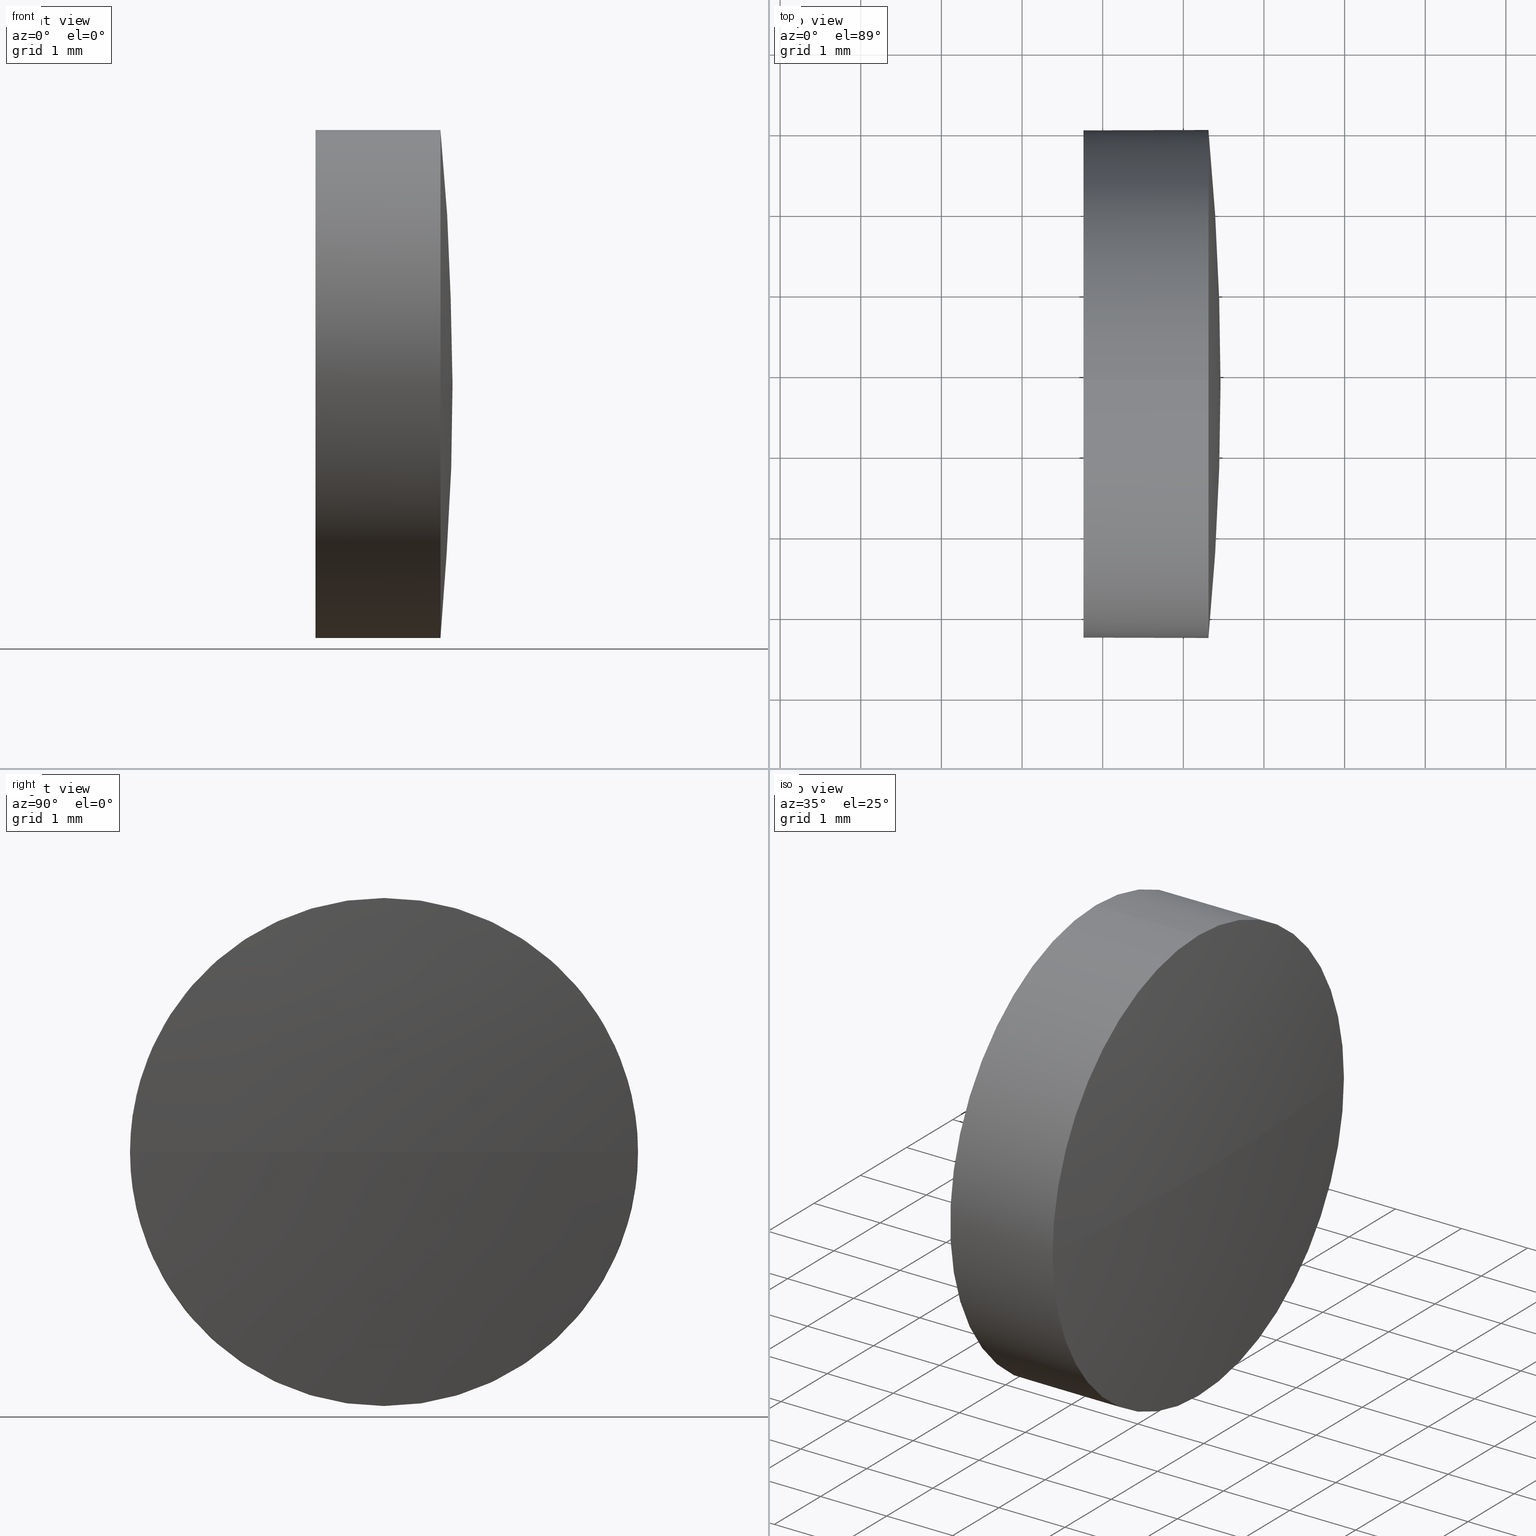
[diagram: canonical four-view strip — front | top / right | iso, engineering-drawing reading convention]
A machine part, canonical four-view strip (front | top / right | iso — engineering-drawing reading convention). The complete STEP part file that produces these views, byte-faithful:
ISO-10303-21;
HEADER;
FILE_DESCRIPTION (( 'STEP AP214' ),
    '1' );
FILE_NAME ('100013.STEP',
    '2019-04-19T06:52:43',
    ( '' ),
    ( '' ),
    'SwSTEP 2.0',
    'SolidWorks 2016',
    '' );
FILE_SCHEMA (( 'AUTOMOTIVE_DESIGN' ));
ENDSEC;

DATA;
#1 = ADVANCED_FACE ( 'NONE', ( #99 ), #119, .T. ) ;
#2 = MECHANICAL_DESIGN_GEOMETRIC_PRESENTATION_REPRESENTATION (  '', ( #44 ), #21 ) ;
#3 = FILL_AREA_STYLE ('',( #17 ) ) ;
#4 = ORIENTED_EDGE ( 'NONE', *, *, #14, .T. ) ;
#5 =( LENGTH_UNIT ( ) NAMED_UNIT ( * ) SI_UNIT ( .MILLI., .METRE. ) );
#6 = DIRECTION ( 'NONE',  ( -1.000000000000000000, -0.0000000000000000000, -0.0000000000000000000 ) ) ;
#7 = DIRECTION ( 'NONE',  ( -1.000000000000000000, -0.0000000000000000000, -0.0000000000000000000 ) ) ;
#8 = CARTESIAN_POINT ( 'NONE',  ( 0.0000000000000000000, 0.0000000000000000000, 0.0000000000000000000 ) ) ;
#9 = MANIFOLD_SOLID_BREP ( '��ת1', #122 ) ;
#10 = DIRECTION ( 'NONE',  ( -1.000000000000000000, -0.0000000000000000000, -0.0000000000000000000 ) ) ;
#11 = EDGE_CURVE ( 'NONE', #18, #165, #87, .T. ) ;
#12 = ORIENTED_EDGE ( 'NONE', *, *, #137, .F. ) ;
#13 = SURFACE_STYLE_FILL_AREA ( #3 ) ;
#14 = EDGE_CURVE ( 'NONE', #114, #170, #78, .T. ) ;
#15 = EDGE_LOOP ( 'NONE', ( #143, #108, #184, #157, #67 ) ) ;
#16 = CARTESIAN_POINT ( 'NONE',  ( 1118.311526673283900, 408.8643062217863600, -3.149999999999986100 ) ) ;
#17 = FILL_AREA_STYLE_COLOUR ( '', #58 ) ;
#18 = VERTEX_POINT ( 'NONE', #19 ) ;
#19 = CARTESIAN_POINT ( 'NONE',  ( 1116.761526673283900, 408.8643062217863600, 3.149999999999986100 ) ) ;
#20 = DIRECTION ( 'NONE',  ( 0.0000000000000000000, 1.000000000000000000, 0.0000000000000000000 ) ) ;
#21 =( GEOMETRIC_REPRESENTATION_CONTEXT ( 3 ) GLOBAL_UNCERTAINTY_ASSIGNED_CONTEXT ( ( #163 ) ) GLOBAL_UNIT_ASSIGNED_CONTEXT ( ( #61, #159, #91 ) ) REPRESENTATION_CONTEXT ( 'NONE', 'WORKASPACE' ) );
#22 = CARTESIAN_POINT ( 'NONE',  ( 1085.311526673284300, 408.8643062217854500, 0.0000000000000000000 ) ) ;
#23 = DIRECTION ( 'NONE',  ( 0.0000000000000000000, 0.0000000000000000000, 1.000000000000000000 ) ) ;
#24 = FACE_OUTER_BOUND ( 'NONE', #45, .T. ) ;
#25 = APPLICATION_PROTOCOL_DEFINITION ( 'draft international standard', 'automotive_design', 1998, #104 ) ;
#26 = VERTEX_POINT ( 'NONE', #16 ) ;
#27 = VECTOR ( 'NONE', #7, 1000.000000000000000 ) ;
#28 = EDGE_CURVE ( 'NONE', #96, #18, #72, .T. ) ;
#29 = ADVANCED_FACE ( 'NONE', ( #148 ), #173, .T. ) ;
#30 = CIRCLE ( 'NONE', #81, 3.149999999999986100 ) ;
#31 = EDGE_CURVE ( 'NONE', #96, #170, #152, .T. ) ;
#32 = SURFACE_STYLE_FILL_AREA ( #176 ) ;
#33 = ORIENTED_EDGE ( 'NONE', *, *, #64, .F. ) ;
#34 = DIRECTION ( 'NONE',  ( -0.0000000000000000000, 0.0000000000000000000, 1.000000000000000000 ) ) ;
#35 =( NAMED_UNIT ( * ) PLANE_ANGLE_UNIT ( ) SI_UNIT ( $, .RADIAN. ) );
#36 =( GEOMETRIC_REPRESENTATION_CONTEXT ( 3 ) GLOBAL_UNCERTAINTY_ASSIGNED_CONTEXT ( ( #141 ) ) GLOBAL_UNIT_ASSIGNED_CONTEXT ( ( #5, #35, #49 ) ) REPRESENTATION_CONTEXT ( 'NONE', 'WORKASPACE' ) );
#37 = VECTOR ( 'NONE', #6, 1000.000000000000000 ) ;
#38 = DIRECTION ( 'NONE',  ( 0.0000000000000000000, 1.224646799147353200E-016, -1.000000000000000000 ) ) ;
#39 = ORIENTED_EDGE ( 'NONE', *, *, #174, .T. ) ;
#40 = DIRECTION ( 'NONE',  ( 1.000000000000000000, 0.0000000000000000000, 0.0000000000000000000 ) ) ;
#41 = PRODUCT_DEFINITION_FORMATION_WITH_SPECIFIED_SOURCE ( '�κ�', '', #160, .NOT_KNOWN. ) ;
#42 = DIRECTION ( 'NONE',  ( 0.0000000000000000000, 0.0000000000000000000, 1.000000000000000000 ) ) ;
#43 = SURFACE_SIDE_STYLE ('',( #32 ) ) ;
#44 = STYLED_ITEM ( 'NONE', ( #107 ), #132 ) ;
#45 = EDGE_LOOP ( 'NONE', ( #73, #39, #48, #146, #33 ) ) ;
#46 = ADVANCED_FACE ( 'NONE', ( #76 ), #144, .F. ) ;
#47 = AXIS2_PLACEMENT_3D ( 'NONE', #65, #34, #109 ) ;
#48 = ORIENTED_EDGE ( 'NONE', *, *, #186, .T. ) ;
#49 =( NAMED_UNIT ( * ) SI_UNIT ( $, .STERADIAN. ) SOLID_ANGLE_UNIT ( ) );
#50 = LINE ( 'NONE', #101, #27 ) ;
#51 = DIRECTION ( 'NONE',  ( 0.0000000000000000000, 0.0000000000000000000, 1.000000000000000000 ) ) ;
#52 = ORIENTED_EDGE ( 'NONE', *, *, #31, .F. ) ;
#53 = DIRECTION ( 'NONE',  ( 0.0000000000000000000, 0.0000000000000000000, 1.000000000000000000 ) ) ;
#54 = FILL_AREA_STYLE_COLOUR ( '', #70 ) ;
#55 = DIRECTION ( 'NONE',  ( -1.000000000000000000, -0.0000000000000000000, -0.0000000000000000000 ) ) ;
#56 = CARTESIAN_POINT ( 'NONE',  ( 1085.311526673284300, 408.8643062217854500, 0.0000000000000000000 ) ) ;
#57 = DIRECTION ( 'NONE',  ( -1.000000000000000000, -0.0000000000000000000, -0.0000000000000000000 ) ) ;
#58 = COLOUR_RGB ( '',1.000000000000000000, 1.000000000000000000, 1.000000000000000000 ) ;
#59 = AXIS2_PLACEMENT_3D ( 'NONE', #88, #86, #125 ) ;
#60 =( LENGTH_UNIT ( ) NAMED_UNIT ( * ) SI_UNIT ( .MILLI., .METRE. ) );
#61 =( LENGTH_UNIT ( ) NAMED_UNIT ( * ) SI_UNIT ( .MILLI., .METRE. ) );
#62 = CIRCLE ( 'NONE', #153, 3.149999999999986100 ) ;
#63 = ORIENTED_EDGE ( 'NONE', *, *, #14, .F. ) ;
#64 = EDGE_CURVE ( 'NONE', #165, #18, #120, .T. ) ;
#65 = CARTESIAN_POINT ( 'NONE',  ( 1085.311526673284300, 408.8643062217854500, 0.0000000000000000000 ) ) ;
#66 = DIRECTION ( 'NONE',  ( -1.000000000000000000, -0.0000000000000000000, -0.0000000000000000000 ) ) ;
#67 = ORIENTED_EDGE ( 'NONE', *, *, #31, .T. ) ;
#68 = AXIS2_PLACEMENT_3D ( 'NONE', #138, #111, #139 ) ;
#69 = CARTESIAN_POINT ( 'NONE',  ( 1118.461526673284000, 408.8643062217854500, 0.0000000000000000000 ) ) ;
#70 = COLOUR_RGB ( '',1.000000000000000000, 1.000000000000000000, 1.000000000000000000 ) ;
#71 = CARTESIAN_POINT ( 'NONE',  ( 1118.311526673283900, 408.8643062217863600, 0.0000000000000000000 ) ) ;
#72 = LINE ( 'NONE', #168, #37 ) ;
#73 = ORIENTED_EDGE ( 'NONE', *, *, #161, .F. ) ;
#74 = AXIS2_PLACEMENT_3D ( 'NONE', #183, #10, #85 ) ;
#75 = DIRECTION ( 'NONE',  ( 0.0000000000000000000, 0.0000000000000000000, 1.000000000000000000 ) ) ;
#76 = FACE_OUTER_BOUND ( 'NONE', #177, .T. ) ;
#77 = PRESENTATION_LAYER_ASSIGNMENT (  '', '', ( #116 ) ) ;
#78 = CIRCLE ( 'NONE', #47, 33.14999999999979300 ) ;
#79 = EDGE_LOOP ( 'NONE', ( #63, #162, #150, #106 ) ) ;
#80 = PRODUCT_DEFINITION_CONTEXT ( 'detailed design', #104, 'design' ) ;
#81 = AXIS2_PLACEMENT_3D ( 'NONE', #172, #102, #23 ) ;
#82 = ADVANCED_FACE ( 'NONE', ( #24 ), #185, .T. ) ;
#83 = DIRECTION ( 'NONE',  ( -1.000000000000000000, -0.0000000000000000000, -0.0000000000000000000 ) ) ;
#84 = DIRECTION ( 'NONE',  ( -0.0000000000000000000, 0.0000000000000000000, -1.000000000000000000 ) ) ;
#85 = DIRECTION ( 'NONE',  ( 0.0000000000000000000, 0.0000000000000000000, 1.000000000000000000 ) ) ;
#86 = DIRECTION ( 'NONE',  ( 1.000000000000000000, 0.0000000000000000000, 0.0000000000000000000 ) ) ;
#87 = CIRCLE ( 'NONE', #93, 3.149999999999986100 ) ;
#88 = CARTESIAN_POINT ( 'NONE',  ( 1116.761526673283900, 408.8643062217863600, 0.0000000000000000000 ) ) ;
#89 = VERTEX_POINT ( 'NONE', #113 ) ;
#90 = APPLICATION_PROTOCOL_DEFINITION ( 'draft international standard', 'automotive_design', 1998, #118 ) ;
#91 =( NAMED_UNIT ( * ) SI_UNIT ( $, .STERADIAN. ) SOLID_ANGLE_UNIT ( ) );
#92 = ORIENTED_EDGE ( 'NONE', *, *, #11, .T. ) ;
#93 = AXIS2_PLACEMENT_3D ( 'NONE', #136, #83, #123 ) ;
#94 = PRODUCT_DEFINITION ( 'δ֪', '', #41, #80 ) ;
#95 = AXIS2_PLACEMENT_3D ( 'NONE', #56, #156, #20 ) ;
#96 = VERTEX_POINT ( 'NONE', #112 ) ;
#97 = UNCERTAINTY_MEASURE_WITH_UNIT (LENGTH_MEASURE( 1.000000000000000100E-005 ), #60, 'distance_accuracy_value', 'NONE');
#98 = CARTESIAN_POINT ( 'NONE',  ( 1116.271868689690100, 408.8643062217863600, 0.0000000000000000000 ) ) ;
#99 = FACE_OUTER_BOUND ( 'NONE', #15, .T. ) ;
#100 = EDGE_CURVE ( 'NONE', #170, #26, #30, .T. ) ;
#101 = CARTESIAN_POINT ( 'NONE',  ( 1116.271868689690100, 408.8643062217863600, -3.149999999999986100 ) ) ;
#102 = DIRECTION ( 'NONE',  ( -1.000000000000000000, -0.0000000000000000000, -0.0000000000000000000 ) ) ;
#103 = SPHERICAL_SURFACE ( 'NONE', #95, 33.14999999999979300 ) ;
#104 = APPLICATION_CONTEXT ( 'automotive_design' ) ;
#105 = SURFACE_STYLE_USAGE ( .BOTH. , #43 ) ;
#106 = ORIENTED_EDGE ( 'NONE', *, *, #100, .F. ) ;
#107 = PRESENTATION_STYLE_ASSIGNMENT (( #105 ) ) ;
#108 = ORIENTED_EDGE ( 'NONE', *, *, #161, .T. ) ;
#109 = DIRECTION ( 'NONE',  ( 1.000000000000000000, 0.0000000000000000000, 0.0000000000000000000 ) ) ;
#110 = CARTESIAN_POINT ( 'NONE',  ( 1118.311526673283900, 412.0143062217863400, 0.0000000000000000000 ) ) ;
#111 = DIRECTION ( 'NONE',  ( -1.000000000000000000, -0.0000000000000000000, -0.0000000000000000000 ) ) ;
#112 = CARTESIAN_POINT ( 'NONE',  ( 1118.311526673283900, 408.8643062217863600, 3.149999999999986100 ) ) ;
#113 = CARTESIAN_POINT ( 'NONE',  ( 1118.311526673283900, 405.7143062217853600, -3.857637417314164200E-016 ) ) ;
#114 = VERTEX_POINT ( 'NONE', #69 ) ;
#115 = PRODUCT_CONTEXT ( 'NONE', #118, 'mechanical' ) ;
#116 = STYLED_ITEM ( 'NONE', ( #128 ), #9 ) ;
#117 =( NAMED_UNIT ( * ) SI_UNIT ( $, .STERADIAN. ) SOLID_ANGLE_UNIT ( ) );
#118 = APPLICATION_CONTEXT ( 'automotive_design' ) ;
#119 = CYLINDRICAL_SURFACE ( 'NONE', #169, 3.149999999999986100 ) ;
#120 = CIRCLE ( 'NONE', #74, 3.149999999999986100 ) ;
#121 = AXIS2_PLACEMENT_3D ( 'NONE', #171, #154, #53 ) ;
#122 = CLOSED_SHELL ( 'NONE', ( #1, #164, #29, #82, #46 ) ) ;
#123 = DIRECTION ( 'NONE',  ( 0.0000000000000000000, 0.0000000000000000000, 1.000000000000000000 ) ) ;
#124 = SURFACE_SIDE_STYLE ('',( #13 ) ) ;
#125 = DIRECTION ( 'NONE',  ( 0.0000000000000000000, 0.0000000000000000000, -1.000000000000000000 ) ) ;
#126 = SHAPE_DEFINITION_REPRESENTATION ( #155, #132 ) ;
#127 = CARTESIAN_POINT ( 'NONE',  ( 1116.271868689690100, 408.8643062217863600, 0.0000000000000000000 ) ) ;
#128 = PRESENTATION_STYLE_ASSIGNMENT (( #149 ) ) ;
#129 =( NAMED_UNIT ( * ) PLANE_ANGLE_UNIT ( ) SI_UNIT ( $, .RADIAN. ) );
#130 = PRODUCT_RELATED_PRODUCT_CATEGORY ( 'part', '', ( #160 ) ) ;
#131 = CIRCLE ( 'NONE', #147, 33.14999999999979300 ) ;
#132 = ADVANCED_BREP_SHAPE_REPRESENTATION ( '100013', ( #9, #179 ), #166 ) ;
#133 = EDGE_LOOP ( 'NONE', ( #12, #4, #52, #167 ) ) ;
#134 = AXIS2_PLACEMENT_3D ( 'NONE', #127, #55, #151 ) ;
#135 = ORIENTED_EDGE ( 'NONE', *, *, #64, .T. ) ;
#136 = CARTESIAN_POINT ( 'NONE',  ( 1116.761526673283900, 408.8643062217863600, 0.0000000000000000000 ) ) ;
#137 = EDGE_CURVE ( 'NONE', #114, #89, #131, .T. ) ;
#138 = CARTESIAN_POINT ( 'NONE',  ( 1118.311526673283900, 408.8643062217863600, 0.0000000000000000000 ) ) ;
#139 = DIRECTION ( 'NONE',  ( 0.0000000000000000000, 0.0000000000000000000, 1.000000000000000000 ) ) ;
#140 = CARTESIAN_POINT ( 'NONE',  ( 1085.311526673284300, 408.8643062217854500, 0.0000000000000000000 ) ) ;
#141 = UNCERTAINTY_MEASURE_WITH_UNIT (LENGTH_MEASURE( 1.000000000000000100E-005 ), #5, 'distance_accuracy_value', 'NONE');
#142 = CIRCLE ( 'NONE', #68, 3.149999999999986100 ) ;
#143 = ORIENTED_EDGE ( 'NONE', *, *, #100, .T. ) ;
#144 = PLANE ( 'NONE',  #59 ) ;
#145 = DIRECTION ( 'NONE',  ( 0.0000000000000000000, 1.000000000000000000, 1.224646799147353200E-016 ) ) ;
#146 = ORIENTED_EDGE ( 'NONE', *, *, #28, .T. ) ;
#147 = AXIS2_PLACEMENT_3D ( 'NONE', #22, #38, #145 ) ;
#148 = FACE_OUTER_BOUND ( 'NONE', #133, .T. ) ;
#149 = SURFACE_STYLE_USAGE ( .BOTH. , #124 ) ;
#150 = ORIENTED_EDGE ( 'NONE', *, *, #174, .F. ) ;
#151 = DIRECTION ( 'NONE',  ( 0.0000000000000000000, 0.0000000000000000000, 1.000000000000000000 ) ) ;
#152 = CIRCLE ( 'NONE', #121, 3.149999999999986100 ) ;
#153 = AXIS2_PLACEMENT_3D ( 'NONE', #71, #57, #75 ) ;
#154 = DIRECTION ( 'NONE',  ( -1.000000000000000000, -0.0000000000000000000, -0.0000000000000000000 ) ) ;
#155 = PRODUCT_DEFINITION_SHAPE ( 'NONE', 'NONE',  #94 ) ;
#156 = DIRECTION ( 'NONE',  ( -0.0000000000000000000, 0.0000000000000000000, -1.000000000000000000 ) ) ;
#157 = ORIENTED_EDGE ( 'NONE', *, *, #28, .F. ) ;
#158 = AXIS2_PLACEMENT_3D ( 'NONE', #140, #84, #181 ) ;
#159 =( NAMED_UNIT ( * ) PLANE_ANGLE_UNIT ( ) SI_UNIT ( $, .RADIAN. ) );
#160 = PRODUCT ( '100013', '100013', '', ( #115 ) ) ;
#161 = EDGE_CURVE ( 'NONE', #26, #165, #50, .T. ) ;
#162 = ORIENTED_EDGE ( 'NONE', *, *, #137, .T. ) ;
#163 = UNCERTAINTY_MEASURE_WITH_UNIT (LENGTH_MEASURE( 1.000000000000000100E-005 ), #61, 'distance_accuracy_value', 'NONE');
#164 = ADVANCED_FACE ( 'NONE', ( #182 ), #103, .T. ) ;
#165 = VERTEX_POINT ( 'NONE', #175 ) ;
#166 =( GEOMETRIC_REPRESENTATION_CONTEXT ( 3 ) GLOBAL_UNCERTAINTY_ASSIGNED_CONTEXT ( ( #97 ) ) GLOBAL_UNIT_ASSIGNED_CONTEXT ( ( #60, #129, #117 ) ) REPRESENTATION_CONTEXT ( 'NONE', 'WORKASPACE' ) );
#167 = ORIENTED_EDGE ( 'NONE', *, *, #186, .F. ) ;
#168 = CARTESIAN_POINT ( 'NONE',  ( 1116.271868689690100, 408.8643062217863600, 3.149999999999986100 ) ) ;
#169 = AXIS2_PLACEMENT_3D ( 'NONE', #98, #66, #51 ) ;
#170 = VERTEX_POINT ( 'NONE', #110 ) ;
#171 = CARTESIAN_POINT ( 'NONE',  ( 1118.311526673283900, 408.8643062217863600, 0.0000000000000000000 ) ) ;
#172 = CARTESIAN_POINT ( 'NONE',  ( 1118.311526673283900, 408.8643062217863600, 0.0000000000000000000 ) ) ;
#173 = SPHERICAL_SURFACE ( 'NONE', #158, 33.14999999999979300 ) ;
#174 = EDGE_CURVE ( 'NONE', #26, #89, #142, .T. ) ;
#175 = CARTESIAN_POINT ( 'NONE',  ( 1116.761526673283900, 408.8643062217863600, -3.149999999999986100 ) ) ;
#176 = FILL_AREA_STYLE ('',( #54 ) ) ;
#177 = EDGE_LOOP ( 'NONE', ( #92, #135 ) ) ;
#178 = PRESENTATION_LAYER_ASSIGNMENT (  '', '', ( #44 ) ) ;
#179 = AXIS2_PLACEMENT_3D ( 'NONE', #8, #42, #40 ) ;
#180 = MECHANICAL_DESIGN_GEOMETRIC_PRESENTATION_REPRESENTATION (  '', ( #116 ), #36 ) ;
#181 = DIRECTION ( 'NONE',  ( 0.0000000000000000000, 1.000000000000000000, 0.0000000000000000000 ) ) ;
#182 = FACE_OUTER_BOUND ( 'NONE', #79, .T. ) ;
#183 = CARTESIAN_POINT ( 'NONE',  ( 1116.761526673283900, 408.8643062217863600, 0.0000000000000000000 ) ) ;
#184 = ORIENTED_EDGE ( 'NONE', *, *, #11, .F. ) ;
#185 = CYLINDRICAL_SURFACE ( 'NONE', #134, 3.149999999999986100 ) ;
#186 = EDGE_CURVE ( 'NONE', #89, #96, #62, .T. ) ;
ENDSEC;
END-ISO-10303-21;
